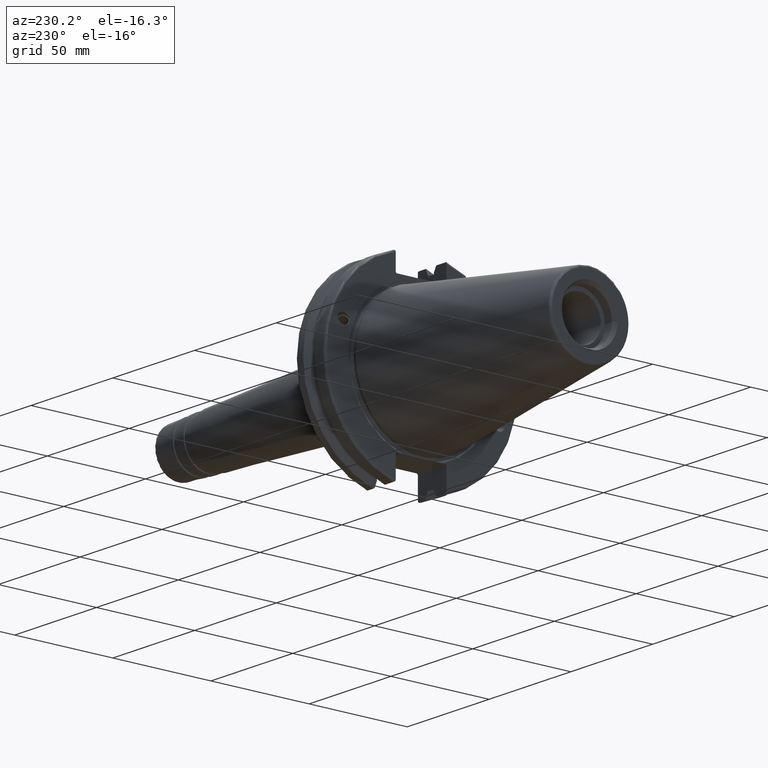
[diagram: clean part render]
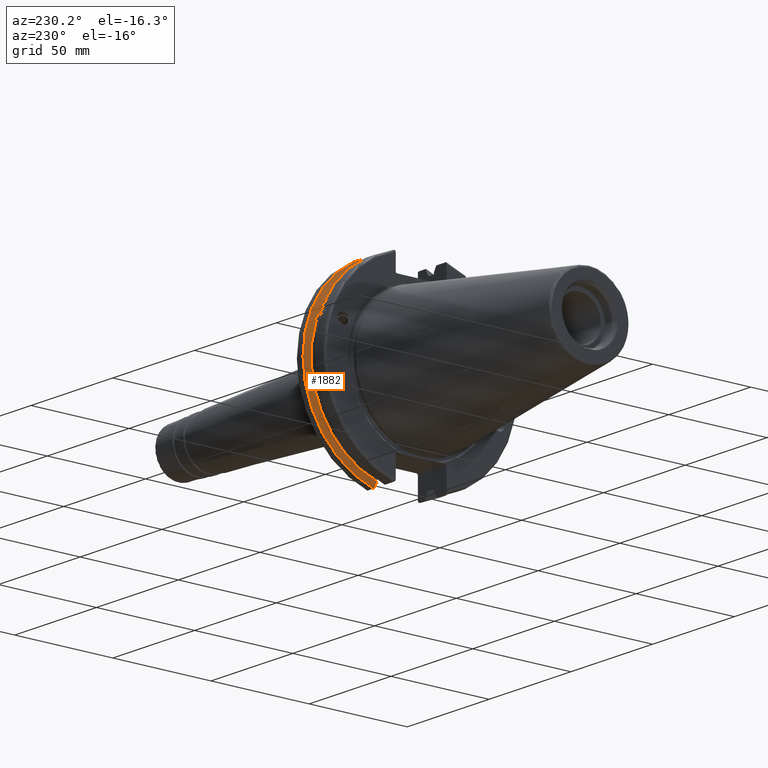
[diagram: same view with one face highlighted and labeled with its STEP entity id]
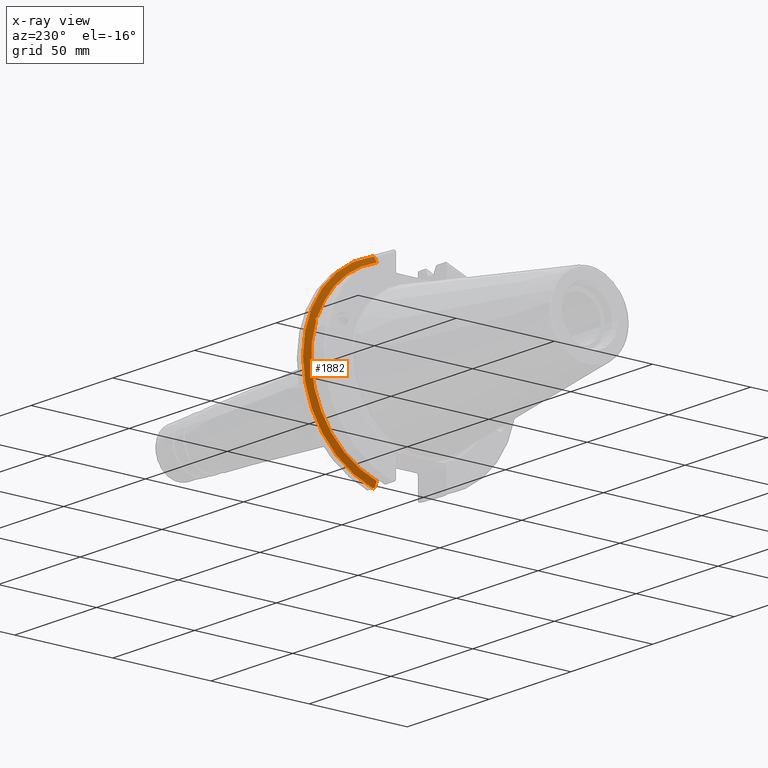
[diagram: x-ray of the same camera — body ghosted, the highlighted face saturated]
A machine part, auxiliary view. The second image highlights one B-rep face of the part: STEP entity #1882.
The next image is the same camera in x-ray: the body ghosted, the highlighted face saturated — about 0% of this face is hidden behind the body in this view.
In plain terms, the highlighted conical surface has half-angle 60 deg.
Its self-contained STEP definition (entity closure, byte-faithful):
#23=(
BOUNDED_CURVE()
B_SPLINE_CURVE(2,(#3484,#3485,#3486),.UNSPECIFIED.,.F.,.F.)
B_SPLINE_CURVE_WITH_KNOTS((3,3),(0.325260944932391,0.390084992222203),
 .UNSPECIFIED.)
CURVE()
GEOMETRIC_REPRESENTATION_ITEM()
RATIONAL_B_SPLINE_CURVE((1.0001914064597,1.00011477674849,1.))
REPRESENTATION_ITEM('')
);
#24=(
BOUNDED_CURVE()
B_SPLINE_CURVE(2,(#3501,#3502,#3503),.UNSPECIFIED.,.F.,.F.)
B_SPLINE_CURVE_WITH_KNOTS((3,3),(0.0558332664502613,0.331657177124503),
 .UNSPECIFIED.)
CURVE()
GEOMETRIC_REPRESENTATION_ITEM()
RATIONAL_B_SPLINE_CURVE((1.00012873637141,1.00038235575535,1.))
REPRESENTATION_ITEM('')
);
#31=(
BOUNDED_CURVE()
B_SPLINE_CURVE(2,(#3701,#3702,#3703),.UNSPECIFIED.,.F.,.F.)
B_SPLINE_CURVE_WITH_KNOTS((3,3),(0.,0.275823910674942),.UNSPECIFIED.)
CURVE()
GEOMETRIC_REPRESENTATION_ITEM()
RATIONAL_B_SPLINE_CURVE((1.,1.00038235574532,1.00012873636803))
REPRESENTATION_ITEM('')
);
#32=(
BOUNDED_CURVE()
B_SPLINE_CURVE(2,(#3718,#3719,#3720),.UNSPECIFIED.,.F.,.F.)
B_SPLINE_CURVE_WITH_KNOTS((3,3),(0.,0.0648240472897739),.UNSPECIFIED.)
CURVE()
GEOMETRIC_REPRESENTATION_ITEM()
RATIONAL_B_SPLINE_CURVE((1.,1.00011477674843,1.0001914064596))
REPRESENTATION_ITEM('')
);
#90=CONICAL_SURFACE('',#2121,47.8172386482472,1.0471975511966);
#150=B_SPLINE_CURVE_WITH_KNOTS('',3,(#3323,#3324,#3325,#3326,#3327,#3328,
#3329,#3330),.UNSPECIFIED.,.F.,.F.,(4,2,2,4),(0.42671286835872,0.441644498666906,
0.48031331322313,0.518982127779353),.UNSPECIFIED.);
#154=B_SPLINE_CURVE_WITH_KNOTS('',3,(#3385,#3386,#3387,#3388,#3389,#3390,
#3391,#3392),.UNSPECIFIED.,.F.,.F.,(4,2,2,4),(0.518982127779353,0.557650942335577,
0.596319756891801,0.611251387199985),.UNSPECIFIED.);
#258=FACE_OUTER_BOUND('',#377,.T.);
#377=EDGE_LOOP('',(#1692,#1693,#1694,#1695,#1696,#1697,#1698,#1699,#1700));
#688=CIRCLE('',#2063,46.4219772964944);
#706=CIRCLE('',#2114,49.2125);
#709=CIRCLE('',#2122,46.4219772964944);
#831=VERTEX_POINT('',#3320);
#832=VERTEX_POINT('',#3322);
#839=VERTEX_POINT('',#3383);
#848=VERTEX_POINT('',#3425);
#858=VERTEX_POINT('',#3481);
#859=VERTEX_POINT('',#3483);
#900=VERTEX_POINT('',#3698);
#901=VERTEX_POINT('',#3700);
#904=VERTEX_POINT('',#3716);
#1063=EDGE_CURVE('',#832,#831,#150,.T.);
#1071=EDGE_CURVE('',#831,#839,#154,.T.);
#1083=EDGE_CURVE('',#848,#832,#688,.T.);
#1099=EDGE_CURVE('',#858,#859,#23,.T.);
#1105=EDGE_CURVE('',#858,#848,#24,.T.);
#1166=EDGE_CURVE('',#901,#900,#31,.T.);
#1174=EDGE_CURVE('',#904,#900,#32,.T.);
#1175=EDGE_CURVE('',#859,#904,#706,.T.);
#1181=EDGE_CURVE('',#839,#901,#709,.T.);
#1692=ORIENTED_EDGE('',*,*,#1063,.T.);
#1693=ORIENTED_EDGE('',*,*,#1071,.T.);
#1694=ORIENTED_EDGE('',*,*,#1181,.T.);
#1695=ORIENTED_EDGE('',*,*,#1166,.T.);
#1696=ORIENTED_EDGE('',*,*,#1174,.F.);
#1697=ORIENTED_EDGE('',*,*,#1175,.F.);
#1698=ORIENTED_EDGE('',*,*,#1099,.F.);
#1699=ORIENTED_EDGE('',*,*,#1105,.T.);
#1700=ORIENTED_EDGE('',*,*,#1083,.T.);
#1882=ADVANCED_FACE('',(#258),#90,.T.);
#2063=AXIS2_PLACEMENT_3D('',#3426,#2483,#2484);
#2114=AXIS2_PLACEMENT_3D('',#3722,#2632,#2633);
#2121=AXIS2_PLACEMENT_3D('',#3735,#2649,#2650);
#2122=AXIS2_PLACEMENT_3D('',#3736,#2651,#2652);
#2483=DIRECTION('center_axis',(1.,0.,0.));
#2484=DIRECTION('ref_axis',(0.,0.,-1.));
#2632=DIRECTION('center_axis',(1.,0.,0.));
#2633=DIRECTION('ref_axis',(0.,0.,-1.));
#2649=DIRECTION('center_axis',(1.,0.,0.));
#2650=DIRECTION('ref_axis',(0.,1.,0.));
#2651=DIRECTION('center_axis',(1.,0.,0.));
#2652=DIRECTION('ref_axis',(0.,0.,-1.));
#3320=CARTESIAN_POINT('',(13.227,43.9234946499061,15.9868446375166));
#3322=CARTESIAN_POINT('',(13.042,43.9096390749305,15.0646464421033));
#3323=CARTESIAN_POINT('Ctrl Pts',(13.042,43.9096390749305,15.0646464421033));
#3324=CARTESIAN_POINT('Ctrl Pts',(13.0589815609661,43.9250360001461,15.1104047527575));
#3325=CARTESIAN_POINT('Ctrl Pts',(13.0750132459668,43.9385582852181,15.1564111356409));
#3326=CARTESIAN_POINT('Ctrl Pts',(13.1287132615496,43.9797830409459,15.3217566390709));
#3327=CARTESIAN_POINT('Ctrl Pts',(13.1648838933644,43.9989016655819,15.4570249042868));
#3328=CARTESIAN_POINT('Ctrl Pts',(13.2141913174802,43.9931221605126,15.7289849146254));
#3329=CARTESIAN_POINT('Ctrl Pts',(13.227,43.9675796948952,15.8657219718732));
#3330=CARTESIAN_POINT('Ctrl Pts',(13.227,43.923494649906,15.9868446375166));
#3383=CARTESIAN_POINT('',(13.042,43.3201030900029,16.6843832486479));
#3385=CARTESIAN_POINT('Ctrl Pts',(13.227,43.923494649906,15.9868446375166));
#3386=CARTESIAN_POINT('Ctrl Pts',(13.227,43.8794096049169,16.10796730316));
#3387=CARTESIAN_POINT('Ctrl Pts',(13.2141913174802,43.8110833825827,16.2291323464528));
#3388=CARTESIAN_POINT('Ctrl Pts',(13.1648838933644,43.6406982153491,16.441180795372));
#3389=CARTESIAN_POINT('Ctrl Pts',(13.1287132615496,43.5391037343221,16.5325130832406));
#3390=CARTESIAN_POINT('Ctrl Pts',(13.0750132459668,43.4012416983557,16.6326763251437));
#3391=CARTESIAN_POINT('Ctrl Pts',(13.0589815609661,43.3613106941341,16.6592273018006));
#3392=CARTESIAN_POINT('Ctrl Pts',(13.042,43.3201030900029,16.6843832486479));
#3425=CARTESIAN_POINT('',(13.042,12.95,-44.5791147973605));
#3426=CARTESIAN_POINT('Origin',(13.042,0.,0.));
#3481=CARTESIAN_POINT('',(14.3747103943757,12.95,-46.9780755322918));
#3483=CARTESIAN_POINT('',(14.6531090340487,13.4317035994433,-47.3440544806494));
#3484=CARTESIAN_POINT('Ctrl Pts',(14.3747103943757,12.95,-46.9780755322918));
#3485=CARTESIAN_POINT('Ctrl Pts',(14.5128310333618,13.1896660169966,-47.1601640966265));
#3486=CARTESIAN_POINT('Ctrl Pts',(14.6531090340487,13.4317035994433,-47.3440544806494));
#3501=CARTESIAN_POINT('Ctrl Pts',(14.3747103943757,12.95,-46.9780755322918));
#3502=CARTESIAN_POINT('Ctrl Pts',(13.6908955094591,12.95,-45.7494966802465));
#3503=CARTESIAN_POINT('Ctrl Pts',(13.042,12.95,-44.5791147973605));
#3698=CARTESIAN_POINT('',(14.3747103943757,12.95,46.9780755322918));
#3700=CARTESIAN_POINT('',(13.042,12.95,44.5791147973605));
#3701=CARTESIAN_POINT('Ctrl Pts',(13.042,12.95,44.5791147973605));
#3702=CARTESIAN_POINT('Ctrl Pts',(13.6908955094436,12.95,45.7494966802186));
#3703=CARTESIAN_POINT('Ctrl Pts',(14.3747103943757,12.95,46.9780755322917));
#3716=CARTESIAN_POINT('',(14.6531090340487,13.4317035994433,47.3440544806494));
#3718=CARTESIAN_POINT('Ctrl Pts',(14.6531090340487,13.4317035994433,47.3440544806494));
#3719=CARTESIAN_POINT('Ctrl Pts',(14.5128310333618,13.1896660169966,47.1601640966264));
#3720=CARTESIAN_POINT('Ctrl Pts',(14.3747103943757,12.95,46.9780755322918));
#3722=CARTESIAN_POINT('Origin',(14.6531090340487,0.,0.));
#3735=CARTESIAN_POINT('Origin',(13.8475545170244,0.,0.));
#3736=CARTESIAN_POINT('Origin',(13.042,0.,0.));